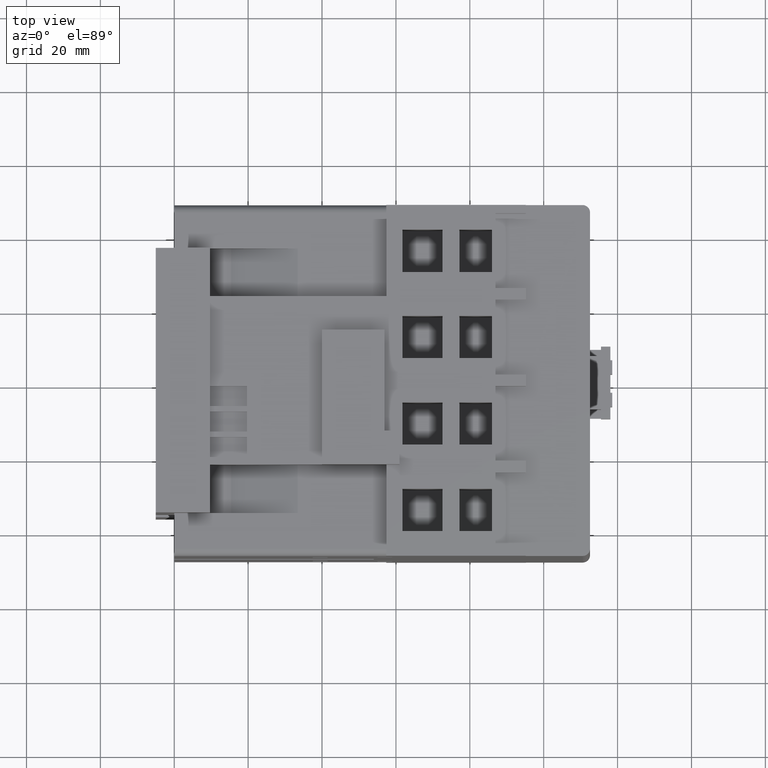
[diagram: clean part render]
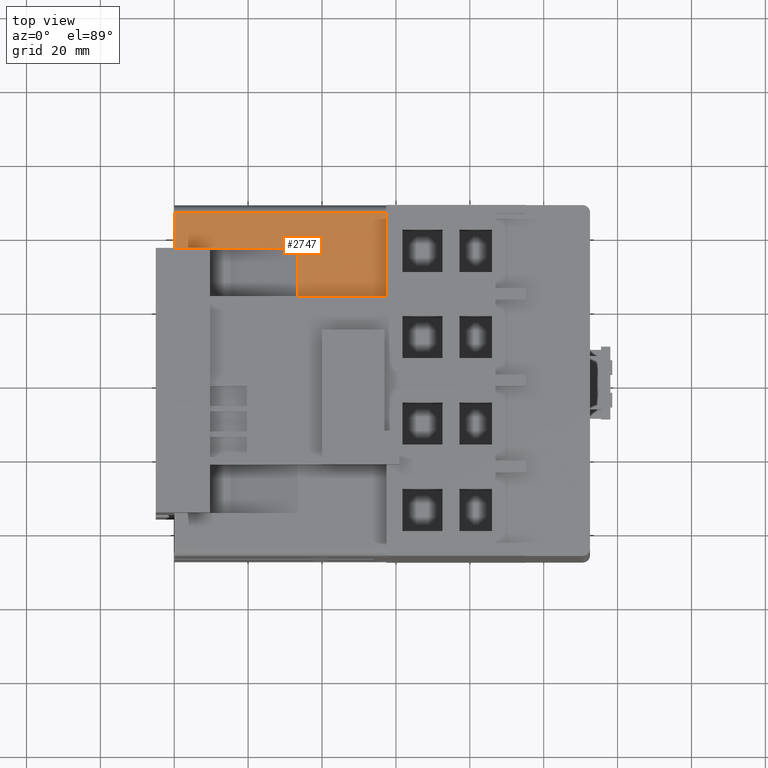
[diagram: same view with one face highlighted and labeled with its STEP entity id]
A machine part, top view. The second image highlights one B-rep face of the part: STEP entity #2747.
In plain terms, the highlighted planar face has unit normal (0, -0, 1).
Its self-contained STEP definition (entity closure, byte-faithful):
#2747=ADVANCED_FACE('',(#3531),#3159,.T.);
#3159=PLANE('',#11124);
#3531=FACE_OUTER_BOUND('',#4040,.T.);
#4040=EDGE_LOOP('',(#5897,#5898,#5899,#5900,#5901,#5902,#5903));
#5897=ORIENTED_EDGE('',*,*,#8109,.T.);
#5898=ORIENTED_EDGE('',*,*,#8110,.T.);
#5899=ORIENTED_EDGE('',*,*,#7229,.T.);
#5900=ORIENTED_EDGE('',*,*,#7614,.T.);
#5901=ORIENTED_EDGE('',*,*,#8111,.T.);
#5902=ORIENTED_EDGE('',*,*,#8108,.F.);
#5903=ORIENTED_EDGE('',*,*,#8112,.T.);
#6468=VERTEX_POINT('',#13471);
#6469=VERTEX_POINT('',#13473);
#6604=VERTEX_POINT('',#13756);
#7083=VERTEX_POINT('',#15264);
#7084=VERTEX_POINT('',#15266);
#7085=VERTEX_POINT('',#15270);
#7086=VERTEX_POINT('',#15271);
#7229=EDGE_CURVE('',#6469,#6468,#8337,.T.);
#7614=EDGE_CURVE('',#6468,#6604,#8686,.T.);
#8108=EDGE_CURVE('',#7084,#7083,#9156,.T.);
#8109=EDGE_CURVE('',#7085,#7086,#9157,.T.);
#8110=EDGE_CURVE('',#7086,#6469,#9158,.T.);
#8111=EDGE_CURVE('',#6604,#7083,#9159,.T.);
#8112=EDGE_CURVE('',#7084,#7085,#9160,.T.);
#8337=LINE('',#13472,#9383);
#8686=LINE('',#14235,#9732);
#9156=LINE('',#15267,#10202);
#9157=LINE('',#15269,#10203);
#9158=LINE('',#15272,#10204);
#9159=LINE('',#15273,#10205);
#9160=LINE('',#15274,#10206);
#9383=VECTOR('',#11366,1.);
#9732=VECTOR('',#11833,1.);
#10202=VECTOR('',#12905,1.);
#10203=VECTOR('',#12908,1.);
#10204=VECTOR('',#12909,1.);
#10205=VECTOR('',#12910,1.);
#10206=VECTOR('',#12911,1.);
#11124=AXIS2_PLACEMENT_3D('',#15275,#12912,#12913);
#11366=DIRECTION('',(1.,0.,0.));
#11833=DIRECTION('',(1.20886653378175E-016,0.,1.));
#12905=DIRECTION('',(-1.,0.,0.));
#12908=DIRECTION('',(-1.,0.,0.));
#12909=DIRECTION('',(0.,-8.67361737988404E-016,-1.));
#12910=DIRECTION('',(1.20886653378175E-016,0.,1.));
#12911=DIRECTION('',(0.,8.67361737988404E-016,1.));
#12912=DIRECTION('',(0.,-1.,8.67361737988404E-016));
#12913=DIRECTION('',(0.,-8.67361737988404E-016,-1.));
#13471=CARTESIAN_POINT('',(-35.8,-47.9,1.53664086453309E-015));
#13472=CARTESIAN_POINT('',(-47.5,-47.9,1.53664086453309E-015));
#13473=CARTESIAN_POINT('',(-45.5,-47.9,1.53664086453309E-015));
#13756=CARTESIAN_POINT('',(-35.8,-47.9,9.70000000000936));
#14235=CARTESIAN_POINT('',(-35.8,-47.9,1.53664086453309E-015));
#15264=CARTESIAN_POINT('',(-35.8,-47.9,33.4000000000093));
#15266=CARTESIAN_POINT('',(-22.8,-47.9,33.4000000000093));
#15267=CARTESIAN_POINT('',(-22.8,-47.9,33.4000000000093));
#15269=CARTESIAN_POINT('',(-22.8,-47.9,57.4000000000094));
#15270=CARTESIAN_POINT('',(-22.8,-47.9,57.4000000000094));
#15271=CARTESIAN_POINT('',(-45.5,-47.9,57.4000000000094));
#15272=CARTESIAN_POINT('',(-45.5,-47.9,33.4000000000094));
#15273=CARTESIAN_POINT('',(-35.8,-47.9,1.53664086453309E-015));
#15274=CARTESIAN_POINT('',(-22.8,-47.9,33.4000000000094));
#15275=CARTESIAN_POINT('',(-22.8,-47.9,33.4000000000094));